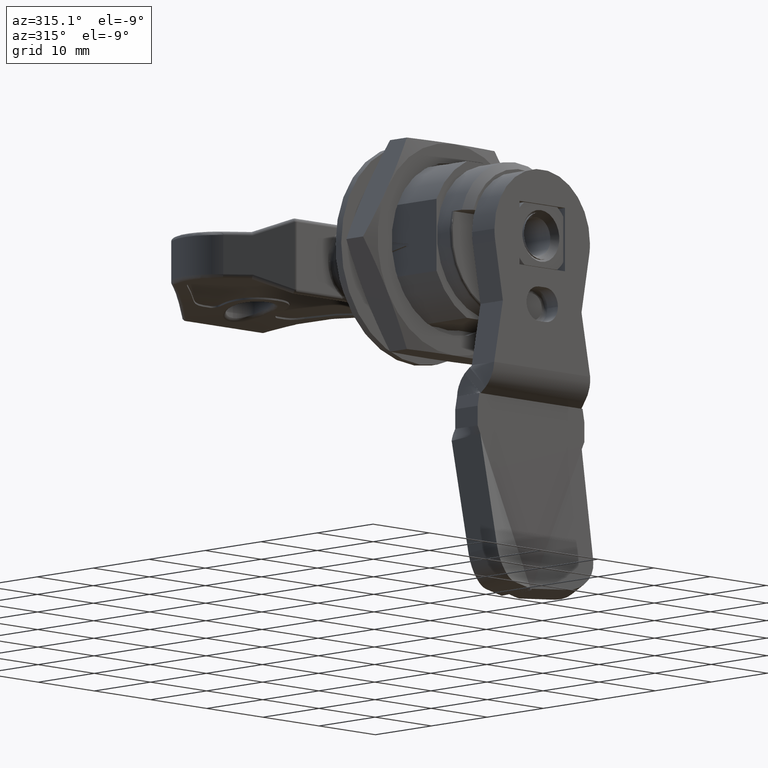
[diagram: clean part render]
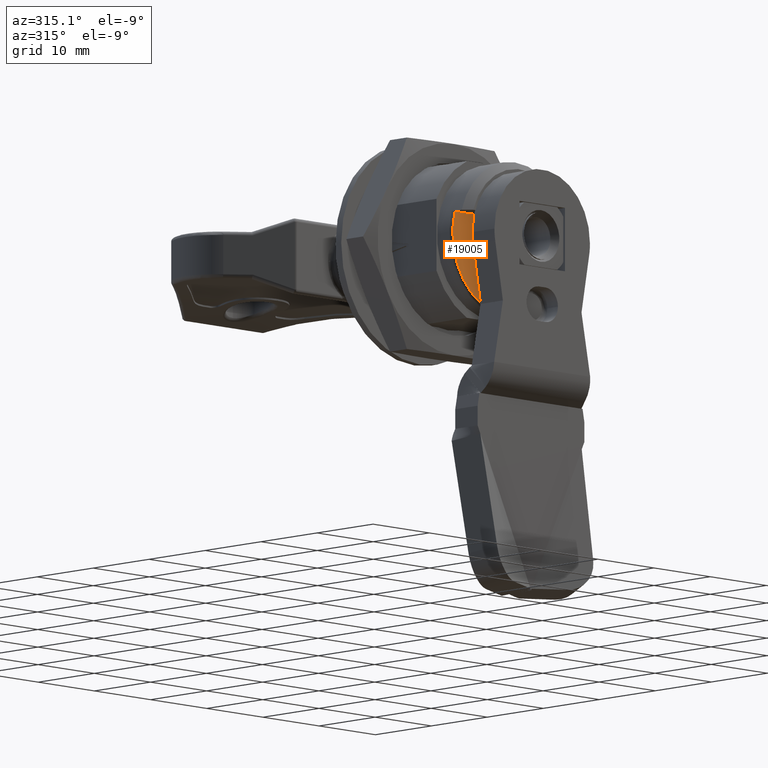
[diagram: same view with one face highlighted and labeled with its STEP entity id]
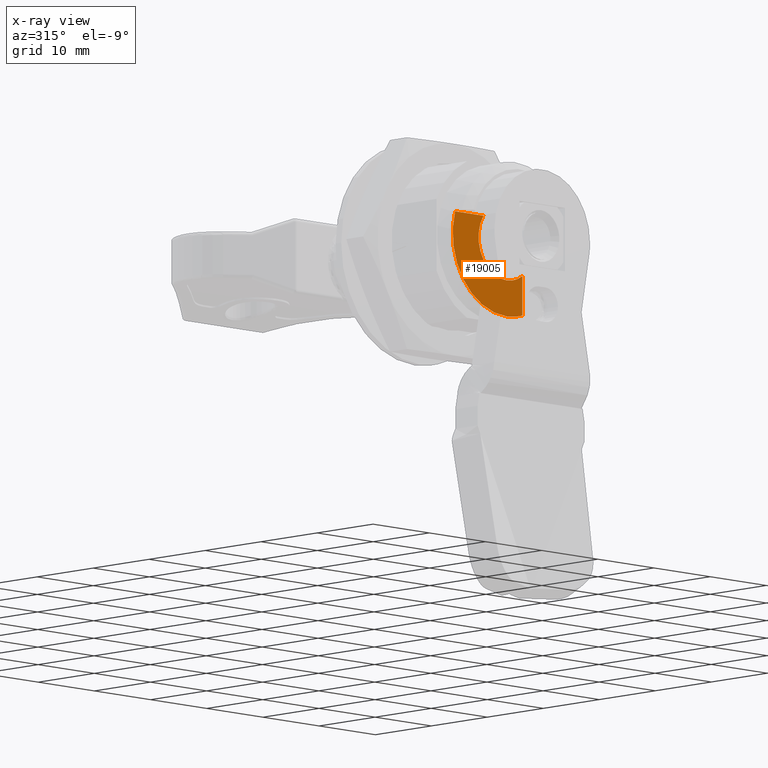
[diagram: x-ray of the same camera — body ghosted, the highlighted face saturated]
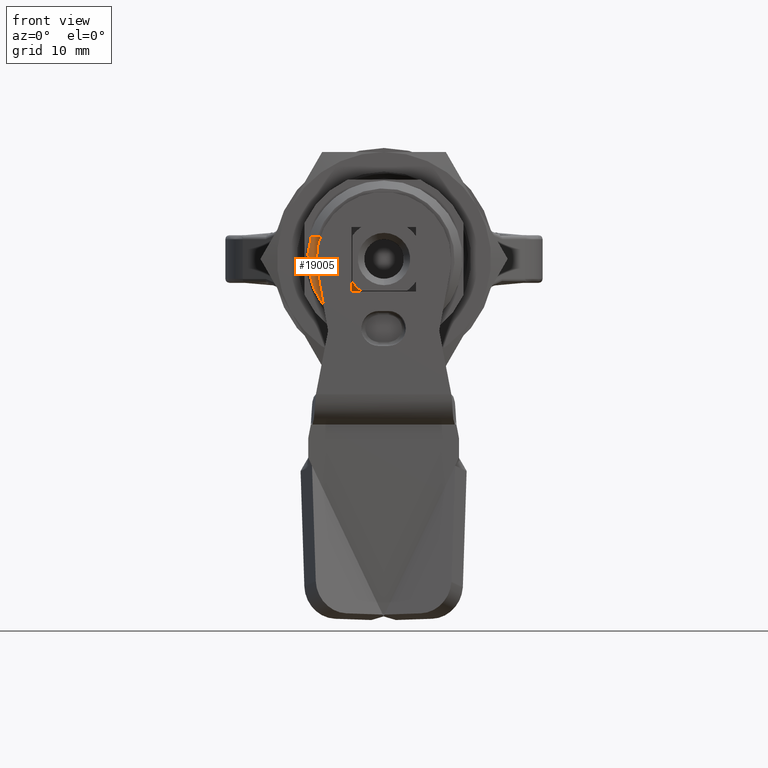
[diagram: same view with one face highlighted and labeled with its STEP entity id]
A machine part, auxiliary view. The second image highlights one B-rep face of the part: STEP entity #19005.
The next image is the same camera in x-ray: the body ghosted, the highlighted face saturated — about 0% of this face is hidden behind the body in this view.
A second angle (front view) of the same face is appended — the face is thin or edge-on in the first view.
In plain terms, the highlighted planar face has unit normal (0, -1, 0).
Its self-contained STEP definition (entity closure, byte-faithful):
#140 = CARTESIAN_POINT ( 'NONE',  ( 10.04383272429399554, 6.400000000000015454, 8.549999999999444711 ) ) ;
#354 = DIRECTION ( 'NONE',  ( 6.966649479515110677E-15, 1.223717186302361345E-26, 1.000000000000000000 ) ) ;
#419 = CARTESIAN_POINT ( 'NONE',  ( 1.605185179145049545, 6.400000000000001243, 3.972572541936038260 ) ) ;
#517 = CARTESIAN_POINT ( 'NONE',  ( 11.19118655297305054, 6.400000000000018119, -1.019375107637552347 ) ) ;
#732 = EDGE_LOOP ( 'NONE', ( #6925, #6334, #7295, #13225, #12075 ) ) ;
#1028 = DIRECTION ( 'NONE',  ( -7.285838599102564553E-15, 0.0000000000000000000, 1.000000000000000000 ) ) ;
#1438 = CIRCLE ( 'NONE', #3582, 5.000000000000016875 ) ;
#1480 = DIRECTION ( 'NONE',  ( 6.966649479515111466E-15, 1.223717186302361345E-26, 1.000000000000000000 ) ) ;
#1870 = DIRECTION ( 'NONE',  ( 1.040834085586080786E-14, 0.0000000000000000000, 1.000000000000000000 ) ) ;
#1959 = CARTESIAN_POINT ( 'NONE',  ( 0.4500453713597767913, 6.399999999999997691, 8.899647729012553299 ) ) ;
#2456 = DIRECTION ( 'NONE',  ( -1.000000000000000000, -1.768665012403154026E-15, -7.022160630746377182E-15 ) ) ;
#2617 = VERTEX_POINT ( 'NONE', #4203 ) ;
#3042 = CARTESIAN_POINT ( 'NONE',  ( 5.089058487433880451, 6.400000000000006573, 0.3272565547654744944 ) ) ;
#3393 = VERTEX_POINT ( 'NONE', #16507 ) ;
#3582 = AXIS2_PLACEMENT_3D ( 'NONE', #11282, #18335, #1028 ) ;
#3699 = AXIS2_PLACEMENT_3D ( 'NONE', #140, #6296, #1870 ) ;
#3883 = CARTESIAN_POINT ( 'NONE',  ( 8.797995674992678872, 6.400000000000011902, -0.9871336214622328242 ) ) ;
#3939 = VECTOR ( 'NONE', #2456, 1000.000000000000000 ) ;
#4203 = CARTESIAN_POINT ( 'NONE',  ( 12.84383272429408862, 6.400000000000019895, -0.6325922265998391580 ) ) ;
#4479 = CARTESIAN_POINT ( 'NONE',  ( 3.557404838270818548, 6.400000000000003020, 1.459945341530716867 ) ) ;
#4580 = CARTESIAN_POINT ( 'NONE',  ( 8.147964841761179855, 6.400000000000014566, -0.8713897453043177865 ) ) ;
#4749 = VERTEX_POINT ( 'NONE', #11063 ) ;
#4761 = CARTESIAN_POINT ( 'NONE',  ( 0.4211211744891379394, 6.399999999999996803, 7.958235330349302750 ) ) ;
#5037 = CARTESIAN_POINT ( 'NONE',  ( 12.02642970994253346, 6.400000000000018119, -0.8817429244107193309 ) ) ;
#5055 = VECTOR ( 'NONE', #1480, 1000.000000000000000 ) ;
#5136 = CARTESIAN_POINT ( 'NONE',  ( 10.22731312610568821, 6.400000000000016342, -1.048409185630746698 ) ) ;
#5166 = DIRECTION ( 'NONE',  ( 1.768664140848895068E-15, -1.000000000000000000, 1.222485019990733153E-26 ) ) ;
#5356 = AXIS2_PLACEMENT_3D ( 'NONE', #18139, #5166, #354 ) ;
#5930 = CARTESIAN_POINT ( 'NONE',  ( 2.137373489967700380, 6.400000000000000355, 3.038415704570145426 ) ) ;
#6028 = CARTESIAN_POINT ( 'NONE',  ( 5.180653482776568453, 6.400000000000006573, 0.2727800235155743436 ) ) ;
#6204 = CARTESIAN_POINT ( 'NONE',  ( 0.5151265317686190004, 6.399999999999999467, 7.084170301414828508 ) ) ;
#6296 = DIRECTION ( 'NONE',  ( -1.768664140848895068E-15, 1.000000000000000000, -7.083634548733947862E-22 ) ) ;
#6334 = ORIENTED_EDGE ( 'NONE', *, *, #8022, .T. ) ;
#6925 = ORIENTED_EDGE ( 'NONE', *, *, #10047, .T. ) ;
#7295 = ORIENTED_EDGE ( 'NONE', *, *, #17007, .T. ) ;
#7474 = CARTESIAN_POINT ( 'NONE',  ( 0.8612404976950995827, 6.400000000000276579, 11.34999999999919318 ) ) ;
#7549 = CARTESIAN_POINT ( 'NONE',  ( 12.84383272429411704, 6.400000000000019895, 8.549999999999167599 ) ) ;
#7566 = CARTESIAN_POINT ( 'NONE',  ( 0.7367189088682630782, 6.399999999999997691, 10.94147486660432378 ) ) ;
#7686 = VERTEX_POINT ( 'NONE', #18725 ) ;
#7841 = CARTESIAN_POINT ( 'NONE',  ( 1.686673495080950325, 6.400000000000000355, 3.825523496790944389 ) ) ;
#8011 = EDGE_CURVE ( 'NONE', #15117, #4749, #19101, .T. ) ;
#8022 = EDGE_CURVE ( 'NONE', #3393, #2617, #18444, .T. ) ;
#9124 = CARTESIAN_POINT ( 'NONE',  ( 0.5917156485381396269, 6.399999999999999467, 10.32186483269439137 ) ) ;
#9307 = CARTESIAN_POINT ( 'NONE',  ( 1.526503617579408889, 6.400000000000000355, 4.118509348599112663 ) ) ;
#9493 = CARTESIAN_POINT ( 'NONE',  ( 10.28478554716129167, 6.400000000000016342, -1.047120880570265200 ) ) ;
#9777 = CARTESIAN_POINT ( 'NONE',  ( 9.565128343249183374, 6.400000000000015454, -1.042775435064991596 ) ) ;
#10047 = EDGE_CURVE ( 'NONE', #4749, #3393, #12719, .T. ) ;
#10274 = LINE ( 'NONE', #7549, #5055 ) ;
#10389 = CARTESIAN_POINT ( 'NONE',  ( 4.035933765523706640, 6.400000000000003908, 1.040770376545112175 ) ) ;
#10482 = CARTESIAN_POINT ( 'NONE',  ( 6.042273523567879501, 6.400000000000008349, -0.2212192401101421568 ) ) ;
#10671 = CARTESIAN_POINT ( 'NONE',  ( 1.040650649942870709, 6.399999999999998579, 5.165958008075286934 ) ) ;
#11063 = CARTESIAN_POINT ( 'NONE',  ( 5.901369688852582840, 6.400000000000174438, 11.34999999999930331 ) ) ;
#11255 = CARTESIAN_POINT ( 'NONE',  ( 12.84383272429413125, 6.400000000000297895, 11.34999999999919318 ) ) ;
#11282 = CARTESIAN_POINT ( 'NONE',  ( 10.04383272429399554, 6.400000000000015454, 8.549999999999444711 ) ) ;
#11947 = CARTESIAN_POINT ( 'NONE',  ( 5.224979652666259078, 6.400000000000006573, 0.2468882711480163694 ) ) ;
#12036 = EDGE_CURVE ( 'NONE', #7686, #15117, #1438, .T. ) ;
#12075 = ORIENTED_EDGE ( 'NONE', *, *, #8011, .T. ) ;
#12130 = CARTESIAN_POINT ( 'NONE',  ( 0.8372123408053954163, 6.400000000000000355, 5.794089828158415223 ) ) ;
#12411 = CARTESIAN_POINT ( 'NONE',  ( 10.11667948744765155, 6.400000000000016342, -1.049911868042432639 ) ) ;
#12445 = FACE_OUTER_BOUND ( 'NONE', #732, .T. ) ;
#12537 = PLANE ( 'NONE',  #5356 ) ;
#12719 = LINE ( 'NONE', #11255, #3939 ) ;
#13225 = ORIENTED_EDGE ( 'NONE', *, *, #12036, .T. ) ;
#13398 = CARTESIAN_POINT ( 'NONE',  ( 4.952473279019880437, 6.400000000000005684, 0.4100203945663024596 ) ) ;
#13495 = CARTESIAN_POINT ( 'NONE',  ( 0.4570752411993986297, 6.399999999999997691, 9.057274210992003916 ) ) ;
#13581 = CARTESIAN_POINT ( 'NONE',  ( 0.4520567958114544149, 6.399999999999998579, 8.950878969007487029 ) ) ;
#14153 = CARTESIAN_POINT ( 'NONE',  ( 9.950885518082367653, 6.400000000000016342, -1.050748164721006628 ) ) ;
#15039 = CARTESIAN_POINT ( 'NONE',  ( 0.4659085068722491063, 6.399999999999998579, 9.216653876036987825 ) ) ;
#15117 = VERTEX_POINT ( 'NONE', #19071 ) ;
#15128 = CARTESIAN_POINT ( 'NONE',  ( 1.352187302019992821, 6.399999999999999467, 4.462727280265521124 ) ) ;
#15212 = CARTESIAN_POINT ( 'NONE',  ( 1.658522791118376416, 6.399999999999998579, 3.875633596172009643 ) ) ;
#15503 = CARTESIAN_POINT ( 'NONE',  ( 12.84383272429408862, 6.400000000000019895, -0.6325922265998391580 ) ) ;
#16294 = CARTESIAN_POINT ( 'NONE',  ( 4.639425451587478655, 6.400000000000006573, 0.6104793212500975175 ) ) ;
#16507 = CARTESIAN_POINT ( 'NONE',  ( 0.8612404976950995827, 6.400000000000276579, 11.34999999999919318 ) ) ;
#16663 = CARTESIAN_POINT ( 'NONE',  ( 0.4956586432454702651, 6.399999999999997691, 9.587047375619453859 ) ) ;
#17007 = EDGE_CURVE ( 'NONE', #2617, #7686, #10274, .T. ) ;
#17733 = CARTESIAN_POINT ( 'NONE',  ( 2.652013198167397334, 6.400000000000000355, 2.365434018764619672 ) ) ;
#17822 = CARTESIAN_POINT ( 'NONE',  ( 6.857918447092152370, 6.400000000000009237, -0.5491674688953770422 ) ) ;
#18139 = CARTESIAN_POINT ( 'NONE',  ( 10.04383272429399554, 6.400000000000015454, 8.549999999999444711 ) ) ;
#18335 = DIRECTION ( 'NONE',  ( -1.768664140848895068E-15, 1.000000000000000000, -7.083634548733947862E-22 ) ) ;
#18444 = B_SPLINE_CURVE_WITH_KNOTS ( 'NONE', 3,
 ( #7474, #7566, #9124, #16663, #15039, #13495, #13581, #1959, #4761, #6204, #12130, #10671, #15128, #9307, #419, #15212, #7841, #5930, #17733, #4479, #10389, #16294, #13398, #3042, #6028, #11947, #10482, #17822, #4580, #3883, #9777, #14153, #12411, #5136, #9493, #517, #5037, #15503 ),
 .UNSPECIFIED., .F., .F.,
 ( 4, 1, 1, 1, 2, 2, 2, 1, 1, 1, 2, 2, 2, 1, 1, 1, 2, 2, 2, 1, 1, 1, 2, 2, 4 ),
 ( 0.0000000000000000000, 0.06250000000000108247, 0.09375000000000162370, 0.1093750000000018874, 0.1171875000000020262, 0.1250000000000021649, 0.2500000000000035527, 0.3125000000000042188, 0.3437500000000044964, 0.3593750000000046629, 0.3671875000000047184, 0.3750000000000047184, 0.5000000000000046629, 0.5625000000000046629, 0.5937500000000046629, 0.6093750000000046629, 0.6171875000000046629, 0.6250000000000046629, 0.7500000000000039968, 0.8125000000000036637, 0.8437500000000033307, 0.8593750000000031086, 0.8671875000000029976, 0.8750000000000028866, 1.000000000000000000 ),
 .UNSPECIFIED. ) ;
#18725 = CARTESIAN_POINT ( 'NONE',  ( 12.84383272429388079, 6.400000000000019895, 4.407536964557532855 ) ) ;
#19005 = ADVANCED_FACE ( 'NONE', ( #12445 ), #12537, .T. ) ;
#19071 = CARTESIAN_POINT ( 'NONE',  ( 10.04383272429396001, 6.400000000000015454, 3.549999999999445155 ) ) ;
#19101 = CIRCLE ( 'NONE', #3699, 5.000000000000016875 ) ;